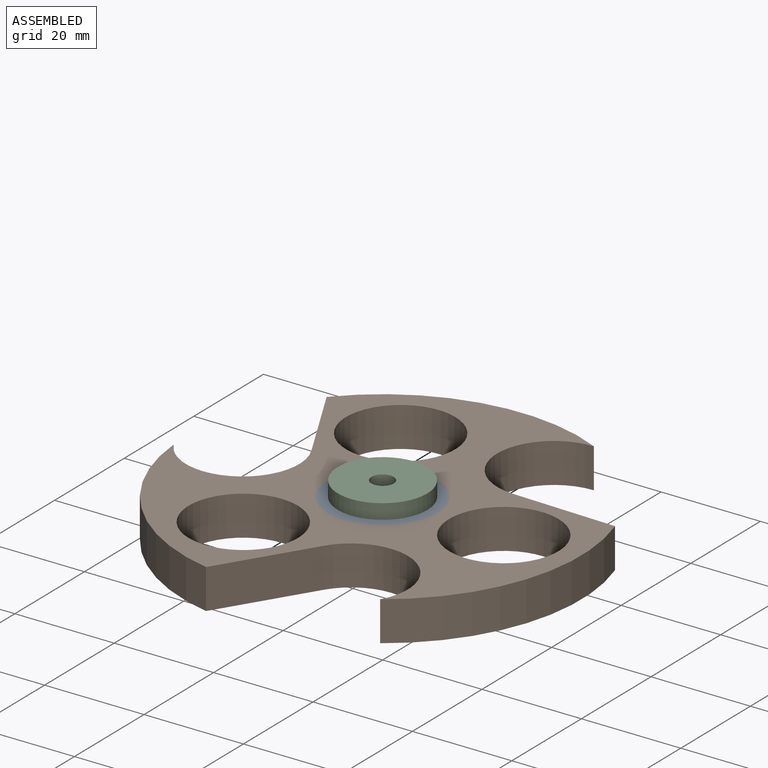
[diagram: assembled view]
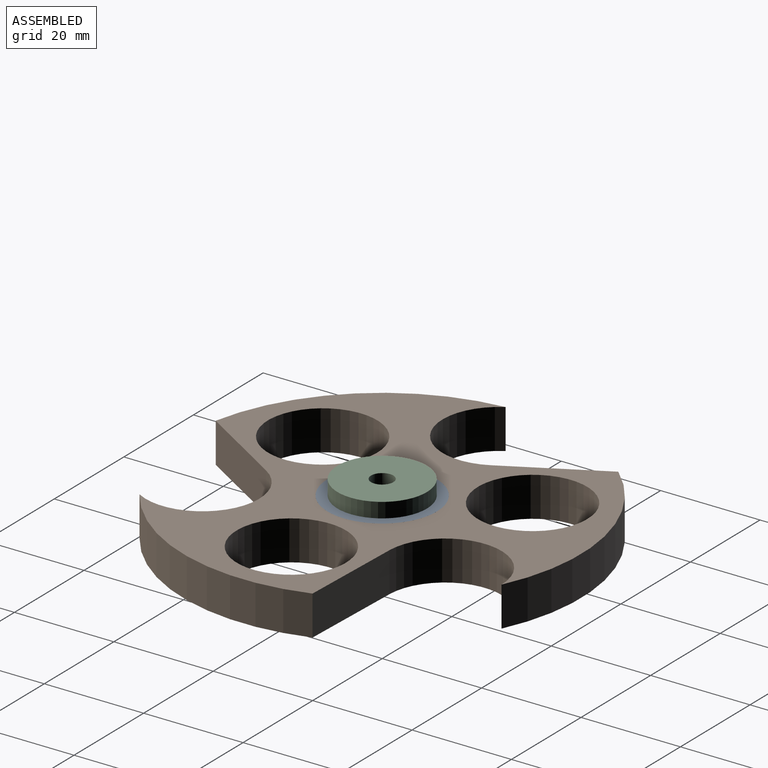
[diagram: assembled view, second angle]
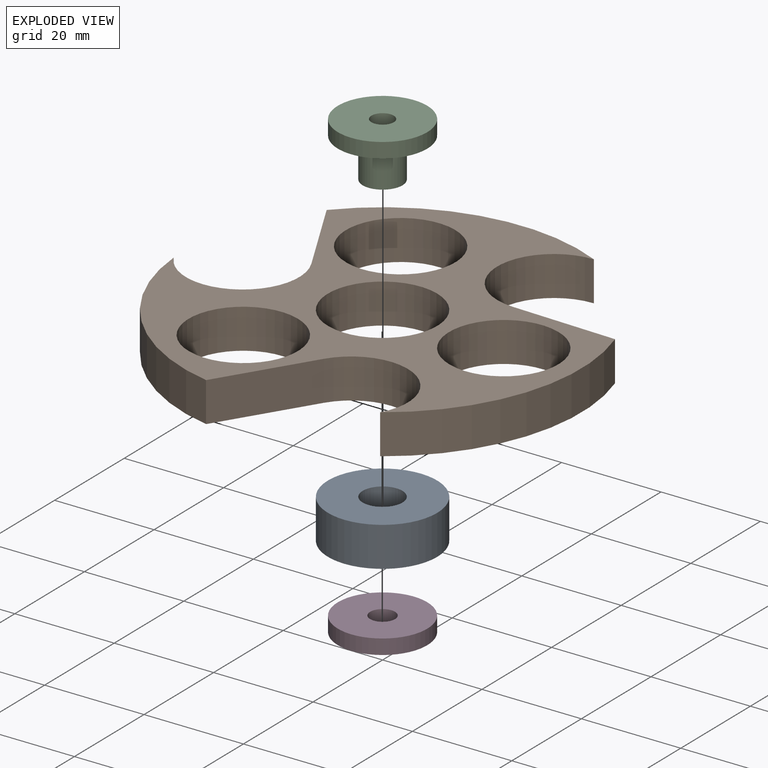
[diagram: exploded view]
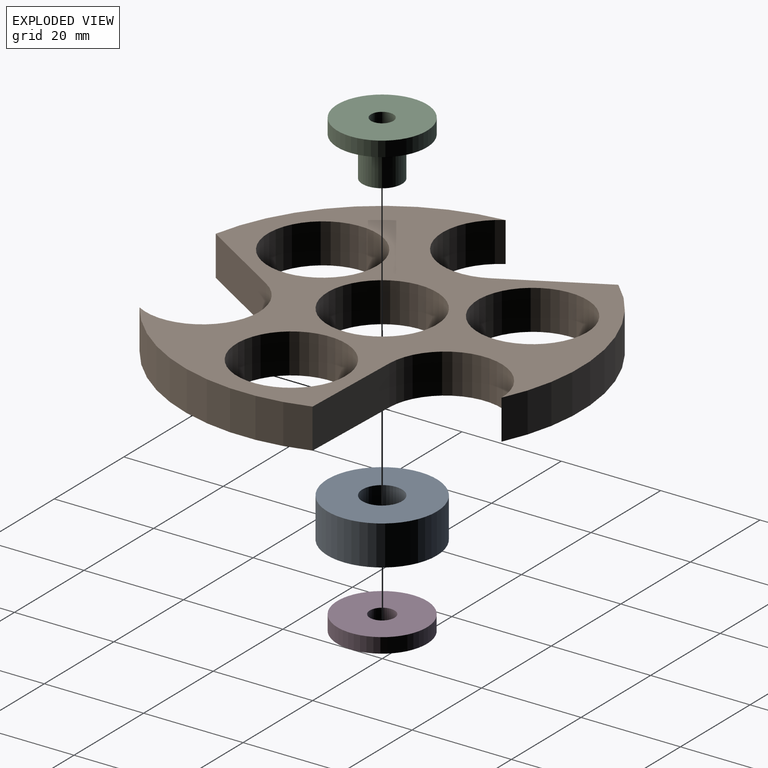
[diagram: exploded view, second angle]
ASSEMBLY  parts=4 mates=3
PART A: 4 faces, bbox 22x22x8 mm
  f0: cylinder r=4mm len=8mm, axis (0,0,-1), area 201.1mm2, adj f2,f3
  f1: cylinder r=11mm len=22mm, axis (0,0,-1), area 552.9mm2, adj f2,f3
  f2: plane 22x22mm, normal (0,0,1), area 329.9mm2, adj f0,f1
  f3: plane 22x22mm, normal (0,0,-1), area 329.9mm2, adj f0,f1
PART B: 18 faces, bbox 79.4x79.8x8 mm
  f0: cylinder r=40mm len=46.04mm, axis (0,0,-1), area 412.7mm2, adj f1,f15,f16,f17
  f1: cylinder r=1.41mm len=8mm, axis (0,0,-1), area 0.7mm2, adj f0,f2,f16,f17
  f2: cylinder r=11.42mm len=21.3mm, axis (0,0,-1), area 283.7mm2, adj f1,f3,f16,f17
  f3: plane 18.31x10.57mm, normal (-0.5,0.87,0), area 169.1mm2, adj f2,f4,f16,f17
  f4: cylinder r=40mm len=35.04mm, axis (0,0,-1), area 412.7mm2, adj f3,f5,f16,f17
  f5: cylinder r=1.41mm len=8mm, axis (0,0,-1), area 0.7mm2, adj f4,f6,f16,f17
  f6: cylinder r=11.42mm len=21.1mm, axis (0,0,-1), area 283.7mm2, adj f5,f7,f16,f17
  f7: plane 18.31x10.57mm, normal (-0.5,-0.87,0), area 169.1mm2, adj f6,f8,f16,f17
  f8: cylinder r=40mm len=46.81mm, axis (0,0,-1), area 412.7mm2, adj f7,f9,f16,f17
  f9: cylinder r=1.41mm len=8mm, axis (0,0,-1), area 0.7mm2, adj f8,f10,f16,f17
  f10: cylinder r=11.42mm len=22.82mm, axis (0,0,-1), area 283.7mm2, adj f9,f15,f16,f17
  f11: cylinder r=11mm len=22mm, axis (0,0,-1), area 552.9mm2, adj f16,f17
  f12: cylinder r=11mm len=22mm, axis (0,0,-1), area 552.9mm2, adj f16,f17
  f13: cylinder r=11mm len=22mm, axis (0,0,-1), area 552.9mm2, adj f16,f17
  f14: cylinder r=11mm len=22mm, axis (0,0,-1), area 552.9mm2, adj f16,f17
  f15: plane 21.14x8mm, normal (1,0,0), area 169.1mm2, adj f0,f10,f16,f17
  f16: plane 79.76x79.41mm, normal (0,0,1), area 1976.9mm2, adj f0,f1,f2,f3,f4,f5,f6,f7
  f17: plane 79.76x79.41mm, normal (0,0,-1), area 1976.9mm2, adj f0,f1,f2,f3,f4,f5,f6,f7
PART C: 6 faces, bbox 18x18x11 mm
  f0: cylinder r=2.25mm len=11mm, axis (0,0,-1), area 155.5mm2, adj f2,f4
  f1: cylinder r=9mm len=18mm, axis (0,0,-1), area 169.6mm2, adj f2,f3
  f2: plane 18x18mm, normal (0,0,1), area 238.6mm2, adj f0,f1
  f3: plane 18x18mm, normal (0,0,-1), area 204.2mm2, adj f1,f5
  f4: plane 8x8mm, normal (0,0,-1), area 34.4mm2, adj f0,f5
  f5: cylinder r=4mm len=8mm, axis (0,0,1), area 201.1mm2, adj f3,f4
PART D: 4 faces, bbox 18x18x3 mm
  f0: cylinder r=9mm len=18mm, axis (0,0,1), area 169.6mm2, adj f2,f3
  f1: cylinder r=2.5mm len=5mm, axis (0,0,1), area 47.1mm2, adj f2,f3
  f2: plane 18x18mm, normal (0,0,-1), area 234.8mm2, adj f0,f1
  f3: plane 18x18mm, normal (0,0,1), area 234.8mm2, adj f0,f1
PLACE A t=(-73.91,24.97,-8)mm
PLACE B rot(axis=(0.24,-0.97,0),180deg) t=(53.39,56.89,0)mm
PLACE C t=(-73.91,24.97,-8)mm
PLACE D t=(-73.91,24.97,-8)mm
MATE revolute B.f0 <-> A.f0  axis (0,0,1) through (0,0,0)mm
MATE fastened C.f0 <-> D.f0  axis (0,0,-1) through (0,0,-8)mm
MATE fastened A.f0 <-> C.f0  axis (0,0,1) through (0,0,0)mm
